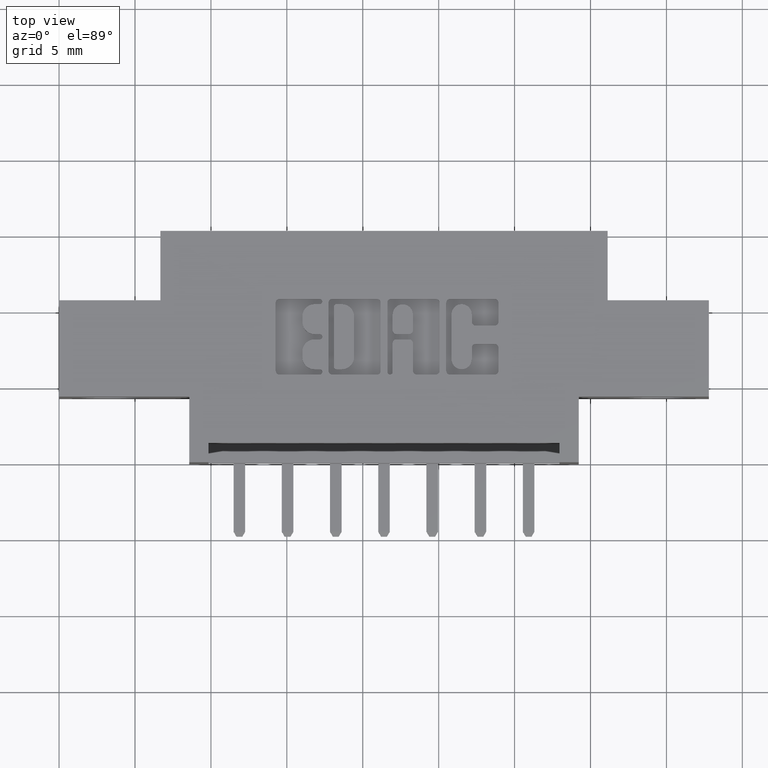
[diagram: clean part render]
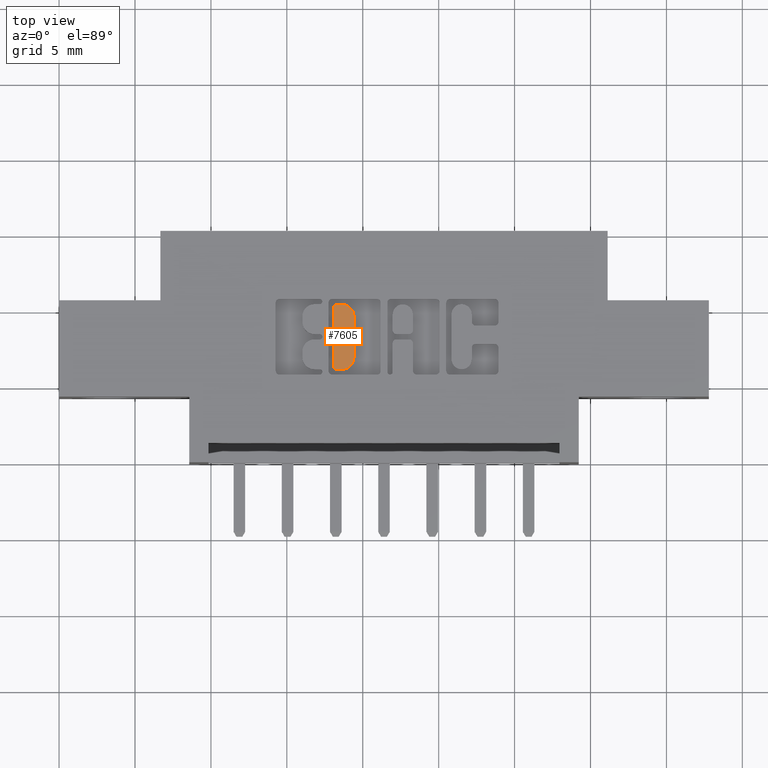
[diagram: same view with one face highlighted and labeled with its STEP entity id]
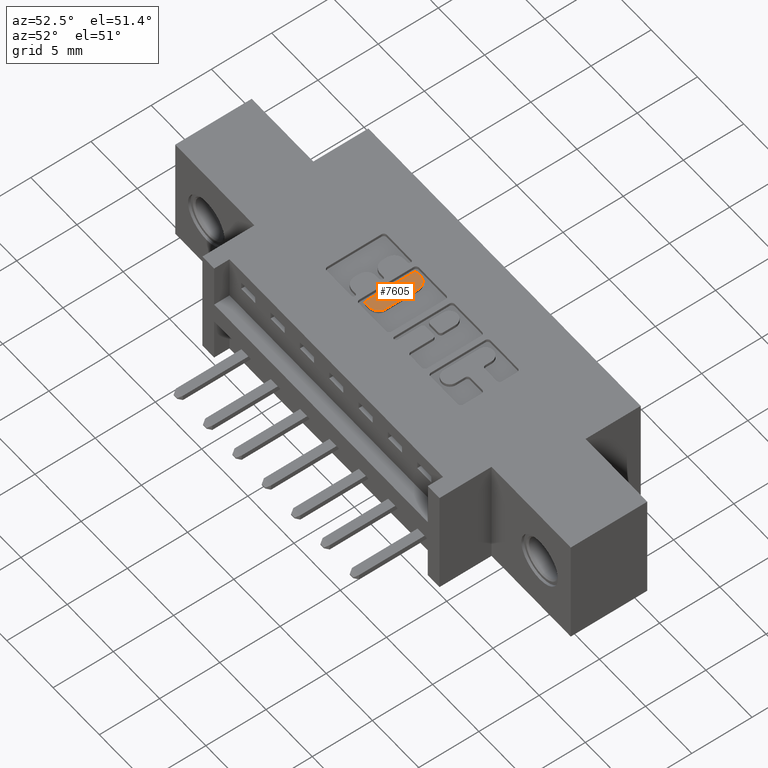
[diagram: same view with one face highlighted and labeled with its STEP entity id]
A machine part, top view. The second image highlights one B-rep face of the part: STEP entity #7605.
A second angle (auxiliary view) of the same face is appended — the face is thin or edge-on in the first view.
In plain terms, the highlighted planar face has unit normal (0, 0, -1).
Its self-contained STEP definition (entity closure, byte-faithful):
#244 = LINE ( 'NONE', #4163, #4557 ) ;
#516 = DIRECTION ( 'NONE',  ( -1.000000000000000000, 0.0000000000000000000, -0.0000000000000000000 ) ) ;
#694 = VERTEX_POINT ( 'NONE', #4283 ) ;
#777 = DIRECTION ( 'NONE',  ( 0.0000000000000000000, 1.000000000000000000, -0.0000000000000000000 ) ) ;
#975 = DIRECTION ( 'NONE',  ( -1.000000000000000000, 0.0000000000000000000, 0.0000000000000000000 ) ) ;
#1193 = DIRECTION ( 'NONE',  ( 1.000000000000000000, 0.0000000000000000000, 0.0000000000000000000 ) ) ;
#1352 = CARTESIAN_POINT ( 'NONE',  ( 0.0000000000000000000, 0.5999999999999999778, 0.0000000000000000000 ) ) ;
#1400 = FACE_OUTER_BOUND ( 'NONE', #6285, .T. ) ;
#1434 = LINE ( 'NONE', #8745, #5979 ) ;
#1508 = CARTESIAN_POINT ( 'NONE',  ( 0.7333006689826718771, 0.3780046191005523859, 0.0000000000000000000 ) ) ;
#1735 = EDGE_CURVE ( 'NONE', #694, #7346, #3912, .T. ) ;
#1780 = CARTESIAN_POINT ( 'NONE',  ( 0.7190679471871620487, 0.2405852362473140937, 0.0000000000000000000 ) ) ;
#1813 = AXIS2_PLACEMENT_3D ( 'NONE', #10128, #7704, #1193 ) ;
#1841 = VERTEX_POINT ( 'NONE', #1780 ) ;
#1960 = CARTESIAN_POINT ( 'NONE',  ( -0.0000000000000000000, 0.4094147637527243422, 0.0000000000000000000 ) ) ;
#1982 = EDGE_CURVE ( 'NONE', #694, #1841, #6414, .T. ) ;
#2497 = CARTESIAN_POINT ( 'NONE',  ( 0.7333006689826736535, 0.2719953808994843292, 0.0000000000000000000 ) ) ;
#2746 = DIRECTION ( 'NONE',  ( 1.000000000000000000, 0.0000000000000000000, 0.0000000000000000000 ) ) ;
#3105 = AXIS2_PLACEMENT_3D ( 'NONE', #1508, #9662, #7965 ) ;
#3149 = VERTEX_POINT ( 'NONE', #6712 ) ;
#3161 = EDGE_CURVE ( 'NONE', #5685, #3162, #7567, .T. ) ;
#3162 = VERTEX_POINT ( 'NONE', #5840 ) ;
#3835 = ORIENTED_EDGE ( 'NONE', *, *, #4439, .T. ) ;
#3912 = LINE ( 'NONE', #5515, #5229 ) ;
#3955 = ORIENTED_EDGE ( 'NONE', *, *, #6230, .F. ) ;
#3978 = ORIENTED_EDGE ( 'NONE', *, *, #4642, .T. ) ;
#4163 = CARTESIAN_POINT ( 'NONE',  ( 0.0000000000000000000, 0.2405852362473140937, 0.0000000000000000000 ) ) ;
#4283 = CARTESIAN_POINT ( 'NONE',  ( 0.7121969780444988851, 0.2474562053899773129, 0.0000000000000000000 ) ) ;
#4439 = EDGE_CURVE ( 'NONE', #8533, #3162, #9410, .T. ) ;
#4458 = ORIENTED_EDGE ( 'NONE', *, *, #9509, .F. ) ;
#4533 = CIRCLE ( 'NONE', #7266, 0.03141014465217017299 ) ;
#4557 = VECTOR ( 'NONE', #975, 39.37007874015748143 ) ;
#4642 = EDGE_CURVE ( 'NONE', #5685, #7346, #8216, .T. ) ;
#5229 = VECTOR ( 'NONE', #777, 39.37007874015748143 ) ;
#5505 = DIRECTION ( 'NONE',  ( 0.0000000000000000000, 0.0000000000000000000, -1.000000000000000000 ) ) ;
#5515 = CARTESIAN_POINT ( 'NONE',  ( 0.7121969780444988851, 0.0000000000000000000, 0.0000000000000000000 ) ) ;
#5534 = ORIENTED_EDGE ( 'NONE', *, *, #1982, .T. ) ;
#5604 = ORIENTED_EDGE ( 'NONE', *, *, #8164, .T. ) ;
#5685 = VERTEX_POINT ( 'NONE', #9575 ) ;
#5840 = CARTESIAN_POINT ( 'NONE',  ( 0.7333006689826780944, 0.4094147637527243422, 0.0000000000000000000 ) ) ;
#5892 = DIRECTION ( 'NONE',  ( 1.000000000000000000, 0.0000000000000000000, 0.0000000000000000000 ) ) ;
#5922 = VECTOR ( 'NONE', #5892, 39.37007874015748143 ) ;
#5935 = ORIENTED_EDGE ( 'NONE', *, *, #1735, .F. ) ;
#5979 = VECTOR ( 'NONE', #6401, 39.37007874015748143 ) ;
#6230 = EDGE_CURVE ( 'NONE', #8533, #3149, #1434, .T. ) ;
#6285 = EDGE_LOOP ( 'NONE', ( #3978, #5935, #5534, #4458, #5604, #3955, #3835, #8650 ) ) ;
#6401 = DIRECTION ( 'NONE',  ( 0.0000000000000000000, -1.000000000000000000, 0.0000000000000000000 ) ) ;
#6414 = CIRCLE ( 'NONE', #1813, 0.006870969142663185293 ) ;
#6711 = DIRECTION ( 'NONE',  ( -0.0000000000000000000, 0.0000000000000000000, 1.000000000000000000 ) ) ;
#6712 = CARTESIAN_POINT ( 'NONE',  ( 0.7647108136348438334, 0.2719953808994843292, 0.0000000000000000000 ) ) ;
#7266 = AXIS2_PLACEMENT_3D ( 'NONE', #2497, #6711, #8252 ) ;
#7331 = CARTESIAN_POINT ( 'NONE',  ( 0.7121969780444988851, 0.4025437946100565711, 0.0000000000000000000 ) ) ;
#7346 = VERTEX_POINT ( 'NONE', #7331 ) ;
#7567 = LINE ( 'NONE', #1960, #5922 ) ;
#7605 = ADVANCED_FACE ( 'NONE', ( #1400 ), #9600, .F. ) ;
#7651 = CARTESIAN_POINT ( 'NONE',  ( 0.7190679471871666006, 0.4025437946100565711, 0.0000000000000000000 ) ) ;
#7690 = CARTESIAN_POINT ( 'NONE',  ( 0.7333006689826736535, 0.2405852362473140937, 0.0000000000000000000 ) ) ;
#7704 = DIRECTION ( 'NONE',  ( -0.0000000000000000000, 0.0000000000000000000, 1.000000000000000000 ) ) ;
#7965 = DIRECTION ( 'NONE',  ( 1.000000000000000000, 0.0000000000000000000, 0.0000000000000000000 ) ) ;
#8164 = EDGE_CURVE ( 'NONE', #8419, #3149, #4533, .T. ) ;
#8216 = CIRCLE ( 'NONE', #10405, 0.006870969142667692972 ) ;
#8252 = DIRECTION ( 'NONE',  ( 1.000000000000000000, 0.0000000000000000000, 0.0000000000000000000 ) ) ;
#8419 = VERTEX_POINT ( 'NONE', #7690 ) ;
#8533 = VERTEX_POINT ( 'NONE', #10163 ) ;
#8650 = ORIENTED_EDGE ( 'NONE', *, *, #3161, .F. ) ;
#8745 = CARTESIAN_POINT ( 'NONE',  ( 0.7647108136348438334, 0.0000000000000000000, 0.0000000000000000000 ) ) ;
#9410 = CIRCLE ( 'NONE', #3105, 0.03141014465217194934 ) ;
#9509 = EDGE_CURVE ( 'NONE', #8419, #1841, #244, .T. ) ;
#9575 = CARTESIAN_POINT ( 'NONE',  ( 0.7190679471871666006, 0.4094147637527243422, 0.0000000000000000000 ) ) ;
#9600 = PLANE ( 'NONE',  #9674 ) ;
#9662 = DIRECTION ( 'NONE',  ( -0.0000000000000000000, 0.0000000000000000000, 1.000000000000000000 ) ) ;
#9674 = AXIS2_PLACEMENT_3D ( 'NONE', #1352, #5505, #516 ) ;
#10128 = CARTESIAN_POINT ( 'NONE',  ( 0.7190679471871620487, 0.2474562053899773129, 0.0000000000000000000 ) ) ;
#10163 = CARTESIAN_POINT ( 'NONE',  ( 0.7647108136348438334, 0.3780046191005523859, 0.0000000000000000000 ) ) ;
#10180 = DIRECTION ( 'NONE',  ( -0.0000000000000000000, 0.0000000000000000000, 1.000000000000000000 ) ) ;
#10405 = AXIS2_PLACEMENT_3D ( 'NONE', #7651, #10180, #2746 ) ;